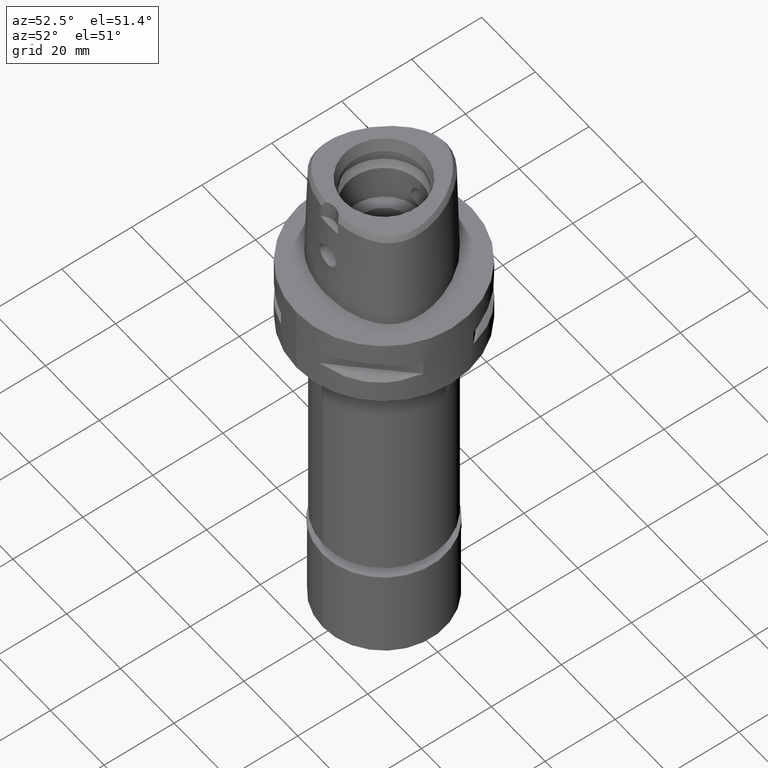
[diagram: clean part render]
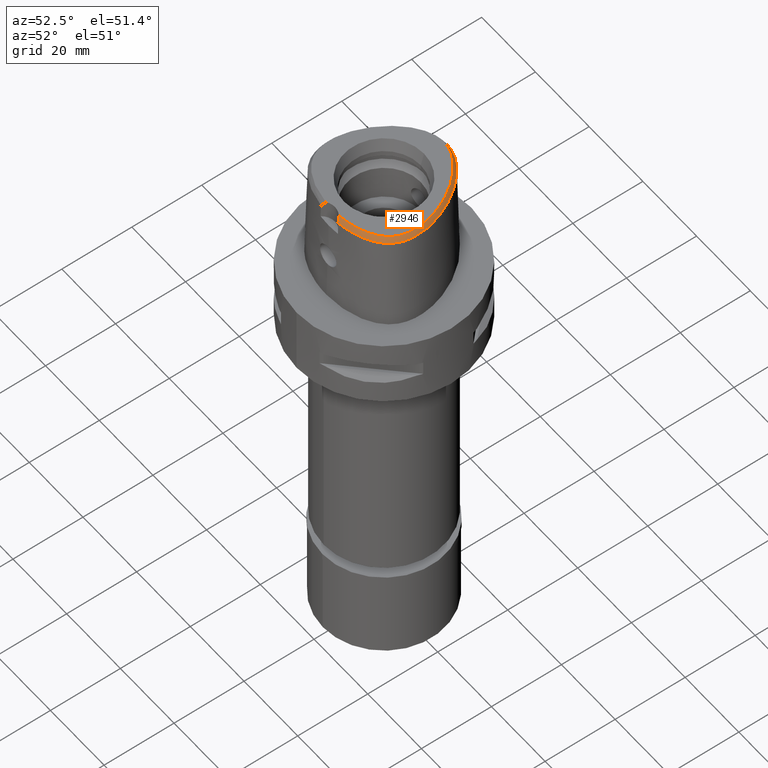
[diagram: same view with one face highlighted and labeled with its STEP entity id]
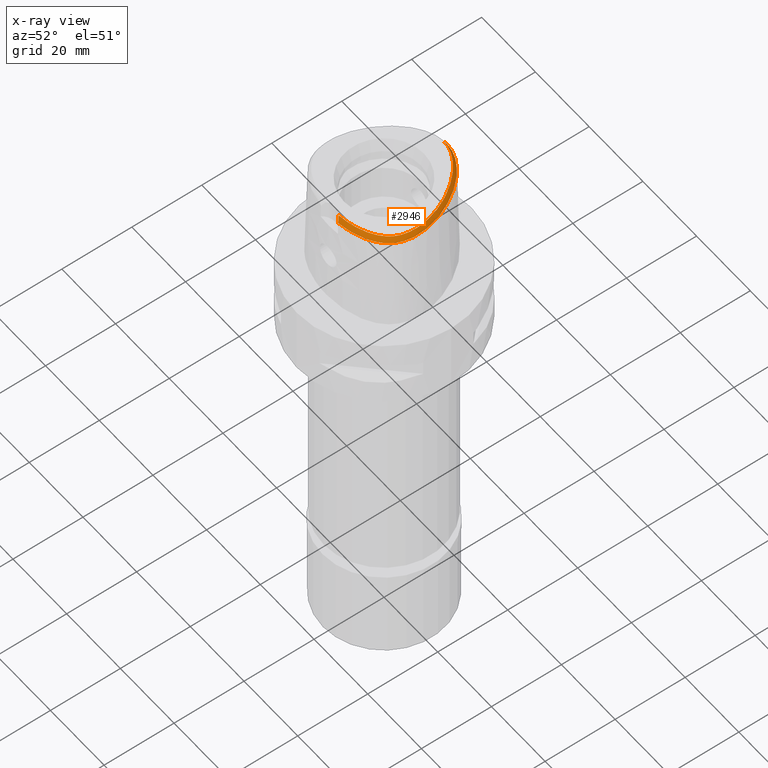
[diagram: x-ray of the same camera — body ghosted, the highlighted face saturated]
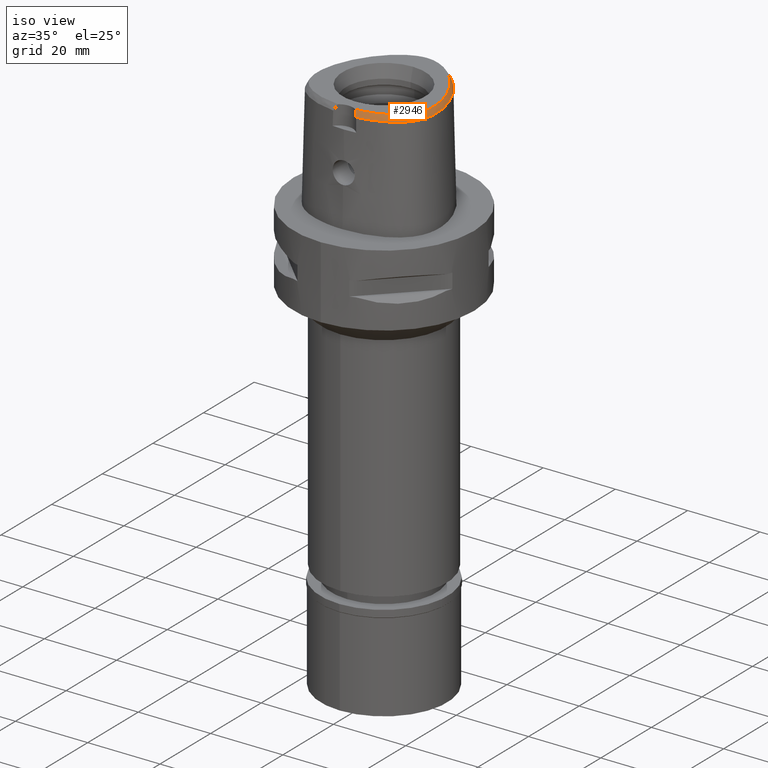
[diagram: same view with one face highlighted and labeled with its STEP entity id]
A machine part, auxiliary view. The second image highlights one B-rep face of the part: STEP entity #2946.
The next image is the same camera in x-ray: the body ghosted, the highlighted face saturated — about 0% of this face is hidden behind the body in this view.
A second angle (iso view) of the same face is appended — the face is thin or edge-on in the first view.
In plain terms, the highlighted face is a freeform B-spline surface patch.
Its self-contained STEP definition (entity closure, byte-faithful):
#6 = CARTESIAN_POINT ( 'NONE',  ( 3.160220630684000387, 16.83716133807999782, 29.56139486168000374 ) ) ;
#9 = CARTESIAN_POINT ( 'NONE',  ( 14.33750027317999987, -10.81116860115000122, 28.35713733753000199 ) ) ;
#21 = CARTESIAN_POINT ( 'NONE',  ( 6.633907724022000352, -13.96934925799000027, 30.16352360234999708 ) ) ;
#29 = CARTESIAN_POINT ( 'NONE',  ( 1.894151058223999984, 17.54271565748999961, 28.95926648253999858 ) ) ;
#45 = CARTESIAN_POINT ( 'NONE',  ( 13.02462620727999898, -11.57639432296000059, 28.95926617666999903 ) ) ;
#53 = CARTESIAN_POINT ( 'NONE',  ( 16.24328738474999767, -5.185950599522000992, 29.56139515919999639 ) ) ;
#56 = CARTESIAN_POINT ( 'NONE',  ( 4.762321264600999804, 16.51859916112000093, 28.95926955945000003 ) ) ;
#59 = CARTESIAN_POINT ( 'NONE',  ( 14.09123853286000028, -10.58025962735000114, 28.95926622756999791 ) ) ;
#71 = CARTESIAN_POINT ( 'NONE',  ( 7.861918263704999355, -13.94736099140000007, 29.56139600654000077 ) ) ;
#112 = CARTESIAN_POINT ( 'NONE',  ( 2.133383074004000068, -15.41360013701999954, 28.95926686195999977 ) ) ;
#125 = CARTESIAN_POINT ( 'NONE',  ( 17.04632358671999981, -3.547512015474999725, 28.35713765087999860 ) ) ;
#151 = CARTESIAN_POINT ( 'NONE',  ( 15.81139830138999969, -0.6287480700163999847, 30.16352389208000062 ) ) ;
#181 = CARTESIAN_POINT ( 'NONE',  ( 10.60500548644139407, -12.49469941439781095, 29.99999999999902300 ) ) ;
#220 = CARTESIAN_POINT ( 'NONE',  ( 13.47512630489999985, 8.344873888123998995, 28.35713741882999983 ) ) ;
#239 = CARTESIAN_POINT ( 'NONE',  ( 12.60735000698999997, 7.823294884878000843, 30.16352399954999797 ) ) ;
#243 = CARTESIAN_POINT ( 'NONE',  ( 2.462701199043999978, -15.72524104751999907, 28.35713832877000229 ) ) ;
#247 = CARTESIAN_POINT ( 'NONE',  ( 15.04259016984715913, -8.247723288182516654, 30.00000000000400746 ) ) ;
#248 = CARTESIAN_POINT ( 'NONE',  ( 7.011539855831999901, 14.71106765531999905, 29.56139496884999929 ) ) ;
#263 = CARTESIAN_POINT ( 'NONE',  ( 7.860329156096000247, 14.03108164310000028, 29.56139528483999968 ) ) ;
#266 = CARTESIAN_POINT ( 'NONE',  ( 14.26907046692650383, -10.79012245165822392, 28.52071728562183495 ) ) ;
#272 = CARTESIAN_POINT ( 'NONE',  ( 15.19902958498000167, -9.757310304429001491, 28.35713728085000085 ) ) ;
#285 = EDGE_CURVE ( 'NONE', #2621, #373, #2567, .T. ) ;
#294 = CARTESIAN_POINT ( 'NONE',  ( 14.93358875778000083, 2.839461067302999631, 30.16352400010999801 ) ) ;
#305 = CARTESIAN_POINT ( 'NONE',  ( 6.184562373902999788, 15.29803179059999962, 29.56139617669000330 ) ) ;
#309 = B_SPLINE_CURVE_WITH_KNOTS ( 'NONE', 3,
 ( #1132, #2253, #1371, #664, #2866, #686, #4377, #3671, #4326, #3282, #3692, #611, #3965, #1056, #2452, #3224, #2945, #2482, #3304, #2506, #2555, #4420, #4019, #4772, #4067, #334, #3997, #2112, #3621, #4589, #2348, #484, #3716, #893, #2401, #247, #3540, #4315, #4728, #940, #3953, #570, #2491, #3910, #181, #1660, #3162, #4659, #1280, #1713, #3212, #2806, #2420, #3982 ),
 .UNSPECIFIED., .F., .F.,
 ( 4, 1, 1, 1, 1, 1, 1, 1, 1, 1, 1, 1, 1, 1, 1, 1, 1, 1, 1, 1, 1, 1, 1, 1, 1, 1, 1, 1, 1, 1, 1, 1, 1, 1, 1, 1, 1, 1, 1, 1, 1, 1, 1, 1, 1, 1, 1, 1, 1, 1, 1, 4 ),
 ( 0.0000000000000000000, 0.01988587058640001182, 0.03977174117009996124, 0.05965761175399997285, 0.07954348233780006439, 0.09942935292160004490, 0.1193152235055000565, 0.1392010940893000370, 0.1590869646731999376, 0.1789728352568999981, 0.1988587058408000097, 0.2187445764247000213, 0.2386304470083999707, 0.2585163175922999823, 0.2784021881761000738, 0.2982880587598999433, 0.3181739293438000660, 0.3380597999276000465, 0.3579456705113999160, 0.3778315410952000075, 0.3977174116791000191, 0.4176032822630000307, 0.4374891528466999802, 0.4573750234305999918, 0.4772608940143999723, 0.4971467645981999528, 0.5170326351820999644, 0.5369185057659000559, 0.5568043763497000365, 0.5766902469335999371, 0.5965761175174000286, 0.6164619881012000091, 0.6363478586849999896, 0.6562337292689000012, 0.6761195998528000128, 0.6960054704364999623, 0.7158913410203999739, 0.7357772116042000654, 0.7556630821880000459, 0.7755489527718999465, 0.7954348233557000381, 0.8153206939395000186, 0.8352065645232999991, 0.8550924351072000107, 0.8749783056909999912, 0.8948641762747999717, 0.9147500468586799993, 0.9346359174424899718, 0.9545217880263200394, 0.9744076586101599879, 0.9942935291939859477, 1.000000000000000000 ),
 .UNSPECIFIED. ) ;
#334 = CARTESIAN_POINT ( 'NONE',  ( 15.90185233182275759, -0.6139199331565649009, 29.99999999999868194 ) ) ;
#335 = CARTESIAN_POINT ( 'NONE',  ( 4.198623546159000242, -14.84041770724000031, 29.56139498296999690 ) ) ;
#373 = VERTEX_POINT ( 'NONE', #2668 ) ;
#374 = CARTESIAN_POINT ( 'NONE',  ( 13.82028004668000065, -11.32806507435000043, 28.35713726540999957 ) ) ;
#394 = CARTESIAN_POINT ( 'NONE',  ( 4.914349362092999662, 16.81997419941999894, 28.35714259711000196 ) ) ;
#408 = CARTESIAN_POINT ( 'NONE',  ( 10.00343136458999993, -13.45367827526999882, 28.95926610928999878 ) ) ;
#430 = CARTESIAN_POINT ( 'NONE',  ( 13.35956165138000173, -10.83453841392000072, 29.56139509834999757 ) ) ;
#437 = CARTESIAN_POINT ( 'NONE',  ( 0.5627680328319000225, 17.04860035900999904, 30.16352402244000075 ) ) ;
#456 = CARTESIAN_POINT ( 'NONE',  ( -0.3069366997010999354, 17.05741411041999811, 30.16352399866000056 ) ) ;
#459 = CARTESIAN_POINT ( 'NONE',  ( 14.37288452396000160, -9.171440254203998776, 30.16352401327999999 ) ) ;
#484 = CARTESIAN_POINT ( 'NONE',  ( 15.87349190487638495, -5.869792298897605676, 30.00000000000116174 ) ) ;
#498 = CARTESIAN_POINT ( 'NONE',  ( 16.69553006481000068, -2.601026832325000093, 28.95926625530999843 ) ) ;
#502 = CARTESIAN_POINT ( 'NONE',  ( -0.4850132322538000529, 17.38585523236000085, 29.56139504411000019 ) ) ;
#504 = EDGE_CURVE ( 'NONE', #4191, #3636, #309, .T. ) ;
#542 = CARTESIAN_POINT ( 'NONE',  ( 16.95646637676999902, -1.558011371480999996, 28.35713684948999713 ) ) ;
#570 = CARTESIAN_POINT ( 'NONE',  ( 12.65514534656730916, -11.12483370673971095, 30.00000000000817479 ) ) ;
#589 = CARTESIAN_POINT ( 'NONE',  ( 15.63332141487000193, 1.723825833584999856, 29.56139608606000024 ) ) ;
#611 = CARTESIAN_POINT ( 'NONE',  ( 6.863227115065437367, 14.51498137220247564, 30.00000000000018829 ) ) ;
#613 = CARTESIAN_POINT ( 'NONE',  ( 15.30845497318999904, 1.632344270090999805, 30.16352364656999896 ) ) ;
#615 = CARTESIAN_POINT ( 'NONE',  ( 3.738627708319180787, -15.49270856215351877, 28.52071728562183495 ) ) ;
#647 = CARTESIAN_POINT ( 'NONE',  ( 16.13895501490999962, -8.083879123173998593, 28.35713778727999923 ) ) ;
#664 = CARTESIAN_POINT ( 'NONE',  ( 1.161482229273570921, 17.07843133414933945, 30.00000000000869349 ) ) ;
#667 = CARTESIAN_POINT ( 'NONE',  ( 12.41013221256999977, 9.387612387726001373, 28.95926708504000047 ) ) ;
#686 = CARTESIAN_POINT ( 'NONE',  ( 2.412811123804682101, 16.81558681049441617, 30.00000000001045919 ) ) ;
#707 = CARTESIAN_POINT ( 'NONE',  ( 8.782223388699000211, -13.24915121961000075, 30.16352400050000071 ) ) ;
#710 = CARTESIAN_POINT ( 'NONE',  ( 16.01658383235691474, -8.155509186611954675, 28.52071728562183495 ) ) ;
#731 = CARTESIAN_POINT ( 'NONE',  ( 12.38915161343999927, -12.06425164630000069, 28.95926678928000086 ) ) ;
#755 = CARTESIAN_POINT ( 'NONE',  ( 10.56119887452999961, -12.41417728393000175, 30.16352400853999782 ) ) ;
#764 = CARTESIAN_POINT ( 'NONE',  ( 0.03975135395809000632, 17.40451366719999982, 29.56139521067999709 ) ) ;
#777 = CARTESIAN_POINT ( 'NONE',  ( 13.12920245373000050, -10.58777508370999954, 30.16352401481999834 ) ) ;
#787 = CARTESIAN_POINT ( 'NONE',  ( 2.479371429671000104, 17.05230756772000333, 29.56139508535000360 ) ) ;
#811 = CARTESIAN_POINT ( 'NONE',  ( 2.662123080188999680, 17.70226114788000160, 28.35713721671000087 ) ) ;
#814 = CARTESIAN_POINT ( 'NONE',  ( 14.79540576309000066, -10.28770569075999930, 28.35713793927000026 ) ) ;
#833 = CARTESIAN_POINT ( 'NONE',  ( 16.66738864687000188, -4.418953499775001070, 28.95926691310999956 ) ) ;
#836 = CARTESIAN_POINT ( 'NONE',  ( 1.242392253823999981, 17.65630229895999648, 28.95926609361000104 ) ) ;
#845 = CARTESIAN_POINT ( 'NONE',  ( 3.238968095606000297, -15.64898600084999991, 28.35713804332999999 ) ) ;
#878 = CARTESIAN_POINT ( 'NONE',  ( -3.151827129214000572E-11, 17.98202997909999823, 28.52071728569000086 ) ) ;
#882 = CARTESIAN_POINT ( 'NONE',  ( 15.92926550300999899, 0.5453614008504999999, 29.56139620812000146 ) ) ;
#893 = CARTESIAN_POINT ( 'NONE',  ( 15.51702143705363213, -7.148634146068517659, 30.00000000000283507 ) ) ;
#908 = CARTESIAN_POINT ( 'NONE',  ( 16.28510340835000036, -1.628456675261000131, 29.56139498730999904 ) ) ;
#934 = CARTESIAN_POINT ( 'NONE',  ( 1.945236707869999915, -15.08898229434000093, 29.56139537937000128 ) ) ;
#940 = CARTESIAN_POINT ( 'NONE',  ( 13.66559393375217546, -10.18115111193898947, 30.00000000000609290 ) ) ;
#954 = CARTESIAN_POINT ( 'NONE',  ( 12.89660877296000052, 7.997154552626999369, 29.56139513930999740 ) ) ;
#962 = CARTESIAN_POINT ( 'NONE',  ( 1.993843166562000224, -15.76189230400000163, 28.35713831803000318 ) ) ;
#988 = CARTESIAN_POINT ( 'NONE',  ( 10.91764517732974760, 11.98972036053649326, 28.52071728562183495 ) ) ;
#1009 = CARTESIAN_POINT ( 'NONE',  ( 13.30281519811999935, 6.593902500402999856, 30.16352396362000121 ) ) ;
#1018 = CARTESIAN_POINT ( 'NONE',  ( 5.997107232590000336, 15.01734143392999954, 30.16352361277999705 ) ) ;
#1038 = ORIENTED_EDGE ( 'NONE', *, *, #1288, .T. ) ;
#1056 = CARTESIAN_POINT ( 'NONE',  ( 8.557117433366284942, 13.07415149352838135, 30.00000000000518696 ) ) ;
#1060 = CARTESIAN_POINT ( 'NONE',  ( 11.04554145730999970, 10.13634547717000167, 30.16352392579999986 ) ) ;
#1083 = CARTESIAN_POINT ( 'NONE',  ( 9.158052402024001282, -14.18937572701999805, 28.35713740919999637 ) ) ;
#1104 = CARTESIAN_POINT ( 'NONE',  ( 4.305296553290999917, -15.50692178941999977, 28.35713683327000112 ) ) ;
#1132 = CARTESIAN_POINT ( 'NONE',  ( -6.301949014349000839E-11, 17.15328888647999861, 30.00000000000000000 ) ) ;
#1145 = CARTESIAN_POINT ( 'NONE',  ( 1.195580797747999968, 17.32196818601000388, 29.56139506115000160 ) ) ;
#1159 = CARTESIAN_POINT ( 'NONE',  ( 13.23839374942000013, -11.83765008291000065, 28.35713725719000067 ) ) ;
#1162 = ORIENTED_EDGE ( 'NONE', *, *, #504, .T. ) ;
#1169 = CARTESIAN_POINT ( 'NONE',  ( 16.91174334249000211, -5.280618200786999950, 28.35713749333999800 ) ) ;
#1172 = CARTESIAN_POINT ( 'NONE',  ( 4.610293167108999945, 16.21722412281999937, 29.56139652178000077 ) ) ;
#1194 = CARTESIAN_POINT ( 'NONE',  ( 1.289203709899999994, 17.99063641192000063, 28.35713712607999781 ) ) ;
#1197 = CARTESIAN_POINT ( 'NONE',  ( 14.27274441644999925, -9.860267981787000480, 29.56139527825000002 ) ) ;
#1217 = CARTESIAN_POINT ( 'NONE',  ( 1.963592199285000062, 17.87308477170000032, 28.35713774003000154 ) ) ;
#1228 = CARTESIAN_POINT ( 'NONE',  ( 1.969539937215999847, -15.42543729916999951, 28.95926684870000045 ) ) ;
#1238 = CARTESIAN_POINT ( 'NONE',  ( 16.02115857717999958, -2.631652804504999832, 30.16352400328000272 ) ) ;
#1255 = CARTESIAN_POINT ( 'NONE',  ( 16.35834432099999702, -2.616339818414999741, 29.56139512928999835 ) ) ;
#1280 = CARTESIAN_POINT ( 'NONE',  ( 6.658132732488579286, -14.05774790738911051, 30.00000000000316902 ) ) ;
#1288 = EDGE_CURVE ( 'NONE', #2621, #4191, #1582, .T. ) ;
#1303 = FACE_OUTER_BOUND ( 'NONE', #1570, .T. ) ;
#1317 = CARTESIAN_POINT ( 'NONE',  ( 9.600000820887998998, 12.37412457679000077, 29.56139562346999838 ) ) ;
#1345 = CARTESIAN_POINT ( 'NONE',  ( 15.07117004567137108, -9.793013887526525352, 28.52071728562183495 ) ) ;
#1362 = CARTESIAN_POINT ( 'NONE',  ( 2.935843368208244542, -15.25651436815395812, 29.10537844852913381 ) ) ;
#1371 = CARTESIAN_POINT ( 'NONE',  ( 0.5691917915716084853, 17.14006060248818031, 30.00000000001038813 ) ) ;
#1373 = CARTESIAN_POINT ( 'NONE',  ( 8.959520074718998472, 13.49649252205000138, 28.95926793759999640 ) ) ;
#1400 = CARTESIAN_POINT ( 'NONE',  ( 12.13042179434999923, 9.198773224976999785, 29.56139547896999886 ) ) ;
#1448 = CARTESIAN_POINT ( 'NONE',  ( 9.716739280499998799, -12.84252677189999936, 30.16352402621999929 ) ) ;
#1456 = CARTESIAN_POINT ( 'NONE',  ( 16.11421254371999723, -5.919976493601000200, 29.56139508316999809 ) ) ;
#1460 = CARTESIAN_POINT ( 'NONE',  ( 7.418755505081999324, 15.24945297999999916, 28.35713678038000296 ) ) ;
#1474 = CARTESIAN_POINT ( 'NONE',  ( 11.99588061276000062, -11.51551264574999855, 30.16352391938000110 ) ) ;
#1481 = CARTESIAN_POINT ( 'NONE',  ( 0.6100752237413999968, 17.72215105879999797, 28.95926613339999989 ) ) ;
#1501 = CARTESIAN_POINT ( 'NONE',  ( 7.754697575589999836, -13.62733460049999934, 30.16352367621999875 ) ) ;
#1515 = CARTESIAN_POINT ( 'NONE',  ( 4.458265069617000087, 15.91584908451999780, 30.16352348411999884 ) ) ;
#1531 = CARTESIAN_POINT ( 'NONE',  ( 12.59709112301000111, -11.05388280304999959, 30.16352401564000019 ) ) ;
#1543 = CARTESIAN_POINT ( 'NONE',  ( 2.570747254929999670, 17.37728435780000069, 28.95926615102999691 ) ) ;
#1557 = CARTESIAN_POINT ( 'NONE',  ( 12.81085866515000049, -11.31513856301000054, 29.56139509615000094 ) ) ;
#1570 = EDGE_LOOP ( 'NONE', ( #1904, #1038, #1162, #3210 ) ) ;
#1574 = CARTESIAN_POINT ( 'NONE',  ( 2.159726698038999970, -15.74990775770999996, 28.35713833895999869 ) ) ;
#1582 = LINE ( 'NONE', #878, #2314 ) ;
#1589 = CARTESIAN_POINT ( 'NONE',  ( 4.002400425672999695, 16.87150155799000117, 28.95926688336999888 ) ) ;
#1595 = CARTESIAN_POINT ( 'NONE',  ( 7.969138951820998962, -14.26738738230000081, 28.95926833686000279 ) ) ;
#1599 = CARTESIAN_POINT ( 'NONE',  ( 2.402531830162999871, -15.05323467420000050, 29.56139538224000063 ) ) ;
#1636 = CARTESIAN_POINT ( 'NONE',  ( 16.14446856876000069, -0.5741478329139000358, 29.56139542752999816 ) ) ;
#1660 = CARTESIAN_POINT ( 'NONE',  ( 9.755668685252752326, -12.92551394022653888, 30.00000000000211742 ) ) ;
#1674 = CARTESIAN_POINT ( 'NONE',  ( 17.03271580862000079, -2.585713846235000002, 28.35713738132000117 ) ) ;
#1713 = CARTESIAN_POINT ( 'NONE',  ( 5.446614459517069129, -14.35518554872932917, 30.00000000000590816 ) ) ;
#1725 = CARTESIAN_POINT ( 'NONE',  ( 11.85071137612999870, 9.009934062226999885, 30.16352387290000081 ) ) ;
#1748 = CARTESIAN_POINT ( 'NONE',  ( 8.726705245219001483, 13.25214210174999963, 29.56139583828000283 ) ) ;
#1754 = CARTESIAN_POINT ( 'NONE',  ( -3.151827129214000572E-11, 17.98202997909999823, 28.52071728569000086 ) ) ;
#1762 = CARTESIAN_POINT ( 'NONE',  ( -6.301949014349000839E-11, 17.15328888647999861, 30.00000000000000000 ) ) ;
#1772 = CARTESIAN_POINT ( 'NONE',  ( 14.23374988245000061, 5.481159166282000506, 29.56139540587999903 ) ) ;
#1780 = CARTESIAN_POINT ( 'NONE',  ( 15.20905403176000092, -7.682597317785999635, 30.16352396286999848 ) ) ;
#1787 = CARTESIAN_POINT ( 'NONE',  ( 6.372017515217000216, 15.57872214726999971, 28.95926874058999800 ) ) ;
#1792 = CARTESIAN_POINT ( 'NONE',  ( 3.168920890822999770, -15.55911073834000113, 28.52071374672999582 ) ) ;
#1804 = CARTESIAN_POINT ( 'NONE',  ( 15.43055712849000116, -7.118146631691999460, 30.16352397393999851 ) ) ;
#1828 = CARTESIAN_POINT ( 'NONE',  ( 15.62296714671999887, -6.509432245211999479, 30.16352401006000150 ) ) ;
#1850 = CARTESIAN_POINT ( 'NONE',  ( 11.49813341445999981, -12.25642228539999934, 29.56139530529999959 ) ) ;
#1853 = CARTESIAN_POINT ( 'NONE',  ( 15.84228676733109076, 3.460033425849080135, 28.52071728562183495 ) ) ;
#1879 = CARTESIAN_POINT ( 'NONE',  ( 15.78374460573999905, -5.851082245802000870, 30.16352402046999970 ) ) ;
#1882 = CARTESIAN_POINT ( 'NONE',  ( 1.755268776100999961, 16.88197742905999732, 30.16352396757000065 ) ) ;
#1897 = CARTESIAN_POINT ( 'NONE',  ( 10.72250379231000039, -12.71067626131999972, 29.56139511515999985 ) ) ;
#1904 = ORIENTED_EDGE ( 'NONE', *, *, #285, .F. ) ;
#1923 = CARTESIAN_POINT ( 'NONE',  ( 13.58992084903000119, -11.08130174413000013, 28.95926618187999679 ) ) ;
#1931 = CARTESIAN_POINT ( 'NONE',  ( 3.047710618296000096, 16.51889246068000006, 30.16352410305000120 ) ) ;
#1934 = CARTESIAN_POINT ( 'NONE',  ( 14.01141374313000121, -9.646549127298001736, 30.16352394773999990 ) ) ;
#1940 = CARTESIAN_POINT ( 'NONE',  ( 2.080695825932000531, -14.74098489564999959, 30.16352390795999838 ) ) ;
#1951 = CARTESIAN_POINT ( 'NONE',  ( -0.3196057776690000574, 17.39456437730000005, 29.56139514165999671 ) ) ;
#1976 = CARTESIAN_POINT ( 'NONE',  ( -0.3322748556369000128, 17.73171464417999843, 28.95926628464999908 ) ) ;
#2005 = CARTESIAN_POINT ( 'NONE',  ( -0.5039140958810000015, 17.72263734254000056, 28.95926605319000302 ) ) ;
#2089 = CARTESIAN_POINT ( 'NONE',  ( 15.89178716332000008, 3.166551920686999644, 28.35713741318999936 ) ) ;
#2112 = CARTESIAN_POINT ( 'NONE',  ( 16.11273027396860869, -2.627494158581008321, 30.00000000000489919 ) ) ;
#2113 = CARTESIAN_POINT ( 'NONE',  ( 10.46690835357999916, 11.40138550634999959, 29.56139499641999890 ) ) ;
#2151 = CARTESIAN_POINT ( 'NONE',  ( 7.215147680457000057, 14.98026031765999910, 28.95926587462000157 ) ) ;
#2163 = CARTESIAN_POINT ( 'NONE',  ( 12.68984263077999941, 9.576451550475999497, 28.35713869110000118 ) ) ;
#2165 = CARTESIAN_POINT ( 'NONE',  ( 16.99625257116710486, -3.273868232426887737, 28.52071728562183495 ) ) ;
#2171 = CARTESIAN_POINT ( 'NONE',  ( 15.55110421638999973, -9.221906134369000085, 28.35713754071000281 ) ) ;
#2183 = CARTESIAN_POINT ( 'NONE',  ( 0.6295828025425412866, 17.98202997637433853, 28.52071728562183495 ) ) ;
#2188 = CARTESIAN_POINT ( 'NONE',  ( 16.06731571698999872, -7.342669176818000132, 28.95926644200999789 ) ) ;
#2206 = CARTESIAN_POINT ( 'NONE',  ( 11.04511362788000106, -13.30367421610000100, 28.35713732841000123 ) ) ;
#2212 = CARTESIAN_POINT ( 'NONE',  ( 16.44468048170000429, -5.988870741400999620, 28.95926614586999648 ) ) ;
#2253 = CARTESIAN_POINT ( 'NONE',  ( 0.1912597614439535132, 17.15328888648386751, 30.00000000000342126 ) ) ;
#2255 = CARTESIAN_POINT ( 'NONE',  ( 12.19251611309999817, -11.78988214602999918, 29.56139535432999921 ) ) ;
#2279 = CARTESIAN_POINT ( 'NONE',  ( 11.67725352791999960, -12.54252288682999961, 28.95926667294999746 ) ) ;
#2288 = CARTESIAN_POINT ( 'NONE',  ( 2.387995604413000184, 16.72733077763999887, 30.16352401966999963 ) ) ;
#2314 = VECTOR ( 'NONE', #4576, 1000.000000000000000 ) ;
#2318 = CARTESIAN_POINT ( 'NONE',  ( 0.04271737047192000758, 18.07962610484999644, 28.35713768617999975 ) ) ;
#2348 = CARTESIAN_POINT ( 'NONE',  ( 15.99982784345596976, -5.151471542954735305, 29.99999999999806732 ) ) ;
#2366 = CARTESIAN_POINT ( 'NONE',  ( -0.4661123686266000488, 17.04907312217000026, 30.16352403503000090 ) ) ;
#2401 = CARTESIAN_POINT ( 'NONE',  ( 15.29323375805077134, -7.718923543002969900, 30.00000000000274980 ) ) ;
#2420 = CARTESIAN_POINT ( 'NONE',  ( 2.538962679605470729, -14.79292722369608271, 30.00000000000931877 ) ) ;
#2438 = CARTESIAN_POINT ( 'NONE',  ( 2.107039449968000078, -15.07729251633000089, 29.56139538496000085 ) ) ;
#2452 = CARTESIAN_POINT ( 'NONE',  ( 9.420872132873588711, 12.20574557692858164, 30.00000000000777689 ) ) ;
#2456 = CARTESIAN_POINT ( 'NONE',  ( 16.28305429823000239, 1.906788960574000047, 28.35714096504000281 ) ) ;
#2482 = CARTESIAN_POINT ( 'NONE',  ( 11.92667412982101460, 9.061218325782419925, 29.99999999999763389 ) ) ;
#2491 = CARTESIAN_POINT ( 'NONE',  ( 12.04928217775816357, -11.59002493207335505, 30.00000000000548539 ) ) ;
#2506 = CARTESIAN_POINT ( 'NONE',  ( 13.38374903490284673, 6.636915464739853832, 30.00000000000296652 ) ) ;
#2507 = CARTESIAN_POINT ( 'NONE',  ( 11.31486877210999964, 10.33972372285999874, 29.56139533710000222 ) ) ;
#2555 = CARTESIAN_POINT ( 'NONE',  ( 14.01089202938475253, 5.377385268370936444, 29.99999999999765876 ) ) ;
#2565 = CARTESIAN_POINT ( 'NONE',  ( 15.26280677903000083, -9.046220165911000421, 28.95926635628000412 ) ) ;
#2567 = B_SPLINE_CURVE_WITH_KNOTS ( 'NONE', 3,
 ( #3255, #2183, #3308, #2585, #4821, #988, #4024, #1853, #4048, #2165, #3330, #2900, #710, #4776, #1345, #266, #3626, #2873, #4357, #4000, #615, #4453 ),
 .UNSPECIFIED., .F., .F.,
 ( 4, 1, 1, 1, 1, 1, 1, 1, 1, 1, 1, 1, 1, 1, 1, 1, 1, 1, 1, 4 ),
 ( 0.0000000000000000000, 0.04404152929333968181, 0.08808305858551654377, 0.1761661171698704897, 0.2642491757542244635, 0.3523322343385784094, 0.4404152929230379931, 0.5284983515073918836, 0.5725398807995688566, 0.6165814100917457186, 0.6606229393839229136, 0.6826437040300112891, 0.7046644686762054688, 0.7266852333222939553, 0.7487059979682767485, 0.7927475272605594148, 0.8367890565527363878, 0.8808305858449132497, 0.9689136444292882899, 1.000000000000000000 ),
 .UNSPECIFIED. ) ;
#2582 = CARTESIAN_POINT ( 'NONE',  ( 6.723109167102000683, -14.29485119139999938, 29.56139620465999940 ) ) ;
#2585 = CARTESIAN_POINT ( 'NONE',  ( 4.422474504766027437, 17.08283549833477721, 28.52071728562183495 ) ) ;
#2591 = CARTESIAN_POINT ( 'NONE',  ( 8.297795180288000338, 14.54516729059999847, 28.35713796395999964 ) ) ;
#2606 = CARTESIAN_POINT ( 'NONE',  ( 8.907499726474000568, -13.56255938874000044, 29.56139513672999897 ) ) ;
#2616 = CARTESIAN_POINT ( 'NONE',  ( 3.869623585338999749, 16.56115168794999803, 29.56139539398000338 ) ) ;
#2621 = VERTEX_POINT ( 'NONE', #1754 ) ;
#2640 = CARTESIAN_POINT ( 'NONE',  ( 4.145287042592999960, -14.50716566614999969, 30.16352405783000279 ) ) ;
#2668 = CARTESIAN_POINT ( 'NONE',  ( 3.168920890822999770, -15.55911073834000113, 28.52071374672999582 ) ) ;
#2697 = CARTESIAN_POINT ( 'NONE',  ( 16.27337282606000102, -6.690592375804999214, 28.95926621214000107 ) ) ;
#2702 = CARTESIAN_POINT ( 'NONE',  ( 0.04123436221500999949, 17.74206988602000123, 28.95926644843000020 ) ) ;
#2704 = CARTESIAN_POINT ( 'NONE',  ( 14.53407508977000084, -10.07398683626999869, 28.95926660875999659 ) ) ;
#2730 = CARTESIAN_POINT ( 'NONE',  ( 15.99429710997999798, -4.366847210511000554, 30.16352389992000127 ) ) ;
#2733 = CARTESIAN_POINT ( 'NONE',  ( 4.135177266007000085, 17.18185142804000165, 28.35713837276000149 ) ) ;
#2745 = CARTESIAN_POINT ( 'NONE',  ( 3.159454793562999964, -14.97887958537999964, 29.56139530603000054 ) ) ;
#2775 = CARTESIAN_POINT ( 'NONE',  ( 17.00393441530999894, -4.445006644406999996, 28.35713841971000093 ) ) ;
#2776 = B_SPLINE_SURFACE_WITH_KNOTS ( 'NONE', 3, 3, ( 
 ( #3207, #934, #1228, #962 ),
 ( #1940, #2438, #112, #1574 ),
 ( #3602, #1599, #4592, #243 ),
 ( #3079, #2745, #4232, #845 ),
 ( #2640, #335, #3328, #1104 ),
 ( #4186, #3695, #4530, #4135 ),
 ( #21, #2582, #3063, #4819 ),
 ( #1501, #71, #1595, #4500 ),
 ( #707, #2606, #4159, #1083 ),
 ( #1448, #4086, #408, #2972 ),
 ( #755, #1897, #4451, #2206 ),
 ( #3718, #1850, #2279, #3352 ),
 ( #1474, #2255, #731, #3401 ),
 ( #1531, #1557, #45, #1159 ),
 ( #777, #430, #1923, #374 ),
 ( #3365, #3787, #59, #9 ),
 ( #1934, #1197, #2704, #814 ),
 ( #459, #3977, #4407, #272 ),
 ( #4725, #2954, #2565, #2171 ),
 ( #2906, #3678, #4384, #4074 ),
 ( #1780, #4433, #4030, #647 ),
 ( #1804, #3655, #2188, #3702 ),
 ( #1828, #2849, #2697, #3455 ),
 ( #1879, #1456, #2212, #3380 ),
 ( #3780, #53, #4539, #1169 ),
 ( #2730, #4219, #833, #2775 ),
 ( #3483, #4285, #3921, #125 ),
 ( #1238, #1255, #498, #1674 ),
 ( #3154, #908, #3506, #542 ),
 ( #151, #1636, #3899, #4628 ),
 ( #4263, #882, #3998, #3968 ),
 ( #613, #589, #3650, #2456 ),
 ( #294, #2925, #3226, #2089 ),
 ( #3305, #2898, #4744, #3283 ),
 ( #3574, #1772, #3600, #2870 ),
 ( #1009, #4398, #4792, #4046 ),
 ( #239, #954, #4774, #220 ),
 ( #1725, #1400, #667, #2163 ),
 ( #1060, #2507, #3673, #4021 ),
 ( #4697, #2113, #2947, #3203 ),
 ( #4426, #1317, #4353, #3253 ),
 ( #4330, #1748, #1373, #3623 ),
 ( #2839, #263, #4759, #2591 ),
 ( #4827, #248, #2151, #1460 ),
 ( #1018, #305, #1787, #4169 ),
 ( #3361, #4481, #3383, #3409 ),
 ( #1515, #1172, #56, #394 ),
 ( #4194, #2616, #1589, #2733 ),
 ( #1931, #6, #3459, #4559 ),
 ( #2288, #787, #1543, #811 ),
 ( #1882, #3833, #29, #1217 ),
 ( #3025, #1145, #836, #1194 ),
 ( #437, #4512, #1481, #4118 ),
 ( #4147, #764, #2702, #2318 ),
 ( #456, #1951, #1976, #3486 ),
 ( #2366, #502, #2005, #3514 ) ),
 .UNSPECIFIED., .F., .F., .F.,
 ( 4, 1, 1, 1, 1, 1, 1, 1, 1, 1, 1, 1, 1, 1, 1, 1, 1, 1, 1, 1, 1, 1, 1, 1, 1, 1, 1, 1, 1, 1, 1, 1, 1, 1, 1, 1, 1, 1, 1, 1, 1, 1, 1, 1, 1, 1, 1, 1, 1, 1, 1, 1, 1, 4 ),
 ( 4, 4 ),
 ( -0.006850724150829000207, 0.0000000000000000000, 0.005706470806014000280, 0.02559234138984000165, 0.04547821197368000223, 0.06536408255751000040, 0.08524995314132000068, 0.1051358237252000005, 0.1250216943090000088, 0.1449075648927999893, 0.1647934354767000009, 0.1846793060604999814, 0.2045651766443000175, 0.2244510472280999980, 0.2443369178119999818, 0.2642227883957999901, 0.2841086589796000261, 0.3039945295635000377, 0.3238804001471999872, 0.3437662707310999988, 0.3636521413150000104, 0.3835380118987999909, 0.4034238824826000269, 0.4233097530664000074, 0.4431956236502999635, 0.4630814942340999996, 0.4829673648179000356, 0.5028532354018000472, 0.5227391059856000277, 0.5426249765694000082, 0.5625108471533000198, 0.5823967177369999693, 0.6022825883208999809, 0.6221684589047999925, 0.6420543294886000840, 0.6619402000723999535, 0.6818260706561999340, 0.7017119412401000567, 0.7215978118238999262, 0.7414836824077000177, 0.7613695529916000293, 0.7812554235752999787, 0.8011412941591999903, 0.8210271647431000019, 0.8409130353268000624, 0.8607989059106999630, 0.8806847764944999435, 0.9005706470783999551, 0.9204565176621999356, 0.9403423882460000272, 0.9602282588299000388, 0.9801141294135999882, 1.000000000000000000, 1.016057694064999906 ),
 ( -0.08705973462249999573, 1.087090484014999969 ),
 .UNSPECIFIED. ) ;
#2806 = CARTESIAN_POINT ( 'NONE',  ( 3.130495111450381174, -14.73481892791719616, 30.00000000000748557 ) ) ;
#2839 = CARTESIAN_POINT ( 'NONE',  ( 7.641596144000000201, 13.77403881935000030, 30.16352394528999881 ) ) ;
#2849 = CARTESIAN_POINT ( 'NONE',  ( 15.94816998638999905, -6.600012310508000191, 29.56139511109999773 ) ) ;
#2866 = CARTESIAN_POINT ( 'NONE',  ( 1.774127352510408873, 16.97169788999106288, 30.00000000000130029 ) ) ;
#2870 = CARTESIAN_POINT ( 'NONE',  ( 14.84564070758999854, 5.766086509641999314, 28.35713841733999985 ) ) ;
#2873 = CARTESIAN_POINT ( 'NONE',  ( 11.33338046474752048, -13.08225241901844171, 28.52071728562183495 ) ) ;
#2898 = CARTESIAN_POINT ( 'NONE',  ( 14.78633608119999998, 4.205946451011000953, 29.56139508871000032 ) ) ;
#2900 = CARTESIAN_POINT ( 'NONE',  ( 16.47905536661581394, -6.962316254603443610, 28.52071728562183495 ) ) ;
#2906 = CARTESIAN_POINT ( 'NONE',  ( 14.96111905588000113, -8.205665308023998961, 30.16352403686000017 ) ) ;
#2920 = CARTESIAN_POINT ( 'NONE',  ( 2.406543924163999648, -14.80491841401999942, 30.00000000000000000 ) ) ;
#2925 = CARTESIAN_POINT ( 'NONE',  ( 15.25298822628999851, 2.948491351763999901, 29.56139513779999817 ) ) ;
#2945 = CARTESIAN_POINT ( 'NONE',  ( 11.11868440495759280, 10.19157821280366960, 30.00000000000270717 ) ) ;
#2946 = ADVANCED_FACE ( 'NONE', ( #1303 ), #2776, .F. ) ;
#2947 = CARTESIAN_POINT ( 'NONE',  ( 10.72498416585999870, 11.61886980651000023, 28.95926594003999810 ) ) ;
#2954 = CARTESIAN_POINT ( 'NONE',  ( 14.97450934167000014, -8.870534197453999070, 29.56139517185000187 ) ) ;
#2972 = CARTESIAN_POINT ( 'NONE',  ( 10.14677740663999828, -13.75925402694999988, 28.35713715082000164 ) ) ;
#3025 = CARTESIAN_POINT ( 'NONE',  ( 1.148769341671999955, 16.98763407306000062, 30.16352402868999860 ) ) ;
#3063 = CARTESIAN_POINT ( 'NONE',  ( 6.812310610182001014, -14.62035312480000115, 28.95926880697999906 ) ) ;
#3079 = CARTESIAN_POINT ( 'NONE',  ( 3.119698142540999974, -14.64382637763999995, 30.16352393738999993 ) ) ;
#3154 = CARTESIAN_POINT ( 'NONE',  ( 15.94942192414000282, -1.663679327149999887, 30.16352405622000177 ) ) ;
#3162 = CARTESIAN_POINT ( 'NONE',  ( 8.816245487876695819, -13.33426548781619125, 30.00000000000040501 ) ) ;
#3203 = CARTESIAN_POINT ( 'NONE',  ( 10.98305997815000090, 11.83635410667999999, 28.35713688365999730 ) ) ;
#3207 = CARTESIAN_POINT ( 'NONE',  ( 1.920933478524999849, -14.75252728951000059, 30.16352391003999855 ) ) ;
#3210 = ORIENTED_EDGE ( 'NONE', *, *, #4062, .F. ) ;
#3212 = CARTESIAN_POINT ( 'NONE',  ( 4.159771979224633931, -14.59766906203867087, 30.00000000000334666 ) ) ;
#3224 = CARTESIAN_POINT ( 'NONE',  ( 10.27891984617941468, 11.24296481357276889, 29.99999999999936406 ) ) ;
#3226 = CARTESIAN_POINT ( 'NONE',  ( 15.57238769480999885, 3.057521636226000261, 28.95926627549999921 ) ) ;
#3253 = CARTESIAN_POINT ( 'NONE',  ( 10.09182643622000164, 12.83643525485999959, 28.35713923235000067 ) ) ;
#3255 = CARTESIAN_POINT ( 'NONE',  ( -3.151827129214000572E-11, 17.98202997909999823, 28.52071728569000086 ) ) ;
#3282 = CARTESIAN_POINT ( 'NONE',  ( 5.258649622038841898, 15.58603480843212097, 29.99999999999943512 ) ) ;
#3283 = CARTESIAN_POINT ( 'NONE',  ( 15.41248937323000057, 4.458008782980999563, 28.35713722929000014 ) ) ;
#3304 = CARTESIAN_POINT ( 'NONE',  ( 12.68590586676875809, 7.870511070825111588, 30.00000000000883915 ) ) ;
#3305 = CARTESIAN_POINT ( 'NONE',  ( 14.47325943518999836, 4.079915285024999783, 30.16352401841000130 ) ) ;
#3308 = CARTESIAN_POINT ( 'NONE',  ( 1.893775678555069009, 17.84807068955529274, 28.52071728562183495 ) ) ;
#3328 = CARTESIAN_POINT ( 'NONE',  ( 4.251960049725000523, -15.17366974832999915, 28.95926590811999901 ) ) ;
#3330 = CARTESIAN_POINT ( 'NONE',  ( 16.85489147434045520, -5.354527548487413746, 28.52071728562183495 ) ) ;
#3352 = CARTESIAN_POINT ( 'NONE',  ( 11.85637364139000027, -12.82862348826000165, 28.35713804059000154 ) ) ;
#3361 = CARTESIAN_POINT ( 'NONE',  ( 5.212409977349000023, 15.50688384671999920, 30.16352335632000248 ) ) ;
#3365 = CARTESIAN_POINT ( 'NONE',  ( 13.59871505221999932, -10.11844167976000008, 30.16352400763999952 ) ) ;
#3380 = CARTESIAN_POINT ( 'NONE',  ( 16.77514841968000070, -6.057764989199999839, 28.35713720856999842 ) ) ;
#3383 = CARTESIAN_POINT ( 'NONE',  ( 5.552937662986000333, 16.08978395308999865, 28.95927037278000071 ) ) ;
#3401 = CARTESIAN_POINT ( 'NONE',  ( 12.58578711378000037, -12.33862114658000131, 28.35713822422999897 ) ) ;
#3409 = CARTESIAN_POINT ( 'NONE',  ( 5.723201505805000089, 16.38123400626999882, 28.35714388099999894 ) ) ;
#3455 = CARTESIAN_POINT ( 'NONE',  ( 16.59857566572999943, -6.781172441101000814, 28.35713731319000175 ) ) ;
#3459 = CARTESIAN_POINT ( 'NONE',  ( 3.272730643071000145, 17.15543021549000002, 28.95926562030999918 ) ) ;
#3483 = CARTESIAN_POINT ( 'NONE',  ( 16.03381188825999715, -3.532063325595999448, 30.16352397644999783 ) ) ;
#3486 = CARTESIAN_POINT ( 'NONE',  ( -0.3449439336048000238, 18.06886491107000126, 28.35713742764999878 ) ) ;
#3506 = CARTESIAN_POINT ( 'NONE',  ( 16.62078489255999969, -1.593234023371000063, 28.95926591839999986 ) ) ;
#3514 = CARTESIAN_POINT ( 'NONE',  ( -0.5228149595082000056, 18.05941945272000027, 28.35713706227000230 ) ) ;
#3540 = CARTESIAN_POINT ( 'NONE',  ( 14.76450668990753101, -8.742560395149356012, 30.00000000000263611 ) ) ;
#3574 = CARTESIAN_POINT ( 'NONE',  ( 13.92780446987999987, 5.338695494601999769, 30.16352390015000040 ) ) ;
#3600 = CARTESIAN_POINT ( 'NONE',  ( 14.53969529501999958, 5.623622837962000354, 28.95926691161000122 ) ) ;
#3602 = CARTESIAN_POINT ( 'NONE',  ( 2.372447145723000084, -14.71723148754000121, 30.16352390898000024 ) ) ;
#3621 = CARTESIAN_POINT ( 'NONE',  ( 16.12546998862610437, -3.533461825553677382, 30.00000000000640910 ) ) ;
#3623 = CARTESIAN_POINT ( 'NONE',  ( 9.192334904219000791, 13.74084294235999870, 28.35714003691999707 ) ) ;
#3626 = CARTESIAN_POINT ( 'NONE',  ( 13.06460231238267689, -11.91950040983074111, 28.52071728562183495 ) ) ;
#3636 = VERTEX_POINT ( 'NONE', #2920 ) ;
#3650 = CARTESIAN_POINT ( 'NONE',  ( 15.95818785654999949, 1.815307397080000218, 28.95926852554999797 ) ) ;
#3655 = CARTESIAN_POINT ( 'NONE',  ( 15.74893642274000172, -7.230407904255000240, 29.56139520797999864 ) ) ;
#3671 = CARTESIAN_POINT ( 'NONE',  ( 3.772905803807131697, 16.33508552419385040, 30.00000000000762412 ) ) ;
#3673 = CARTESIAN_POINT ( 'NONE',  ( 11.58419608689999869, 10.54310196856000026, 28.95926674839999748 ) ) ;
#3678 = CARTESIAN_POINT ( 'NONE',  ( 15.26111238488999966, -8.360531405525998494, 29.56139503921999889 ) ) ;
#3692 = CARTESIAN_POINT ( 'NONE',  ( 6.048015628560013290, 15.09357031579595265, 30.00000000000416378 ) ) ;
#3695 = CARTESIAN_POINT ( 'NONE',  ( 5.498515683981000102, -14.59548586931999914, 29.56139544109999662 ) ) ;
#3702 = CARTESIAN_POINT ( 'NONE',  ( 16.38569501125000016, -7.454930449381000912, 28.35713767604999802 ) ) ;
#3716 = CARTESIAN_POINT ( 'NONE',  ( 15.71128456931254469, -6.534031654962950242, 30.00000000000341061 ) ) ;
#3718 = CARTESIAN_POINT ( 'NONE',  ( 11.31901330100000003, -11.97032168396999907, 30.16352393765999906 ) ) ;
#3780 = CARTESIAN_POINT ( 'NONE',  ( 15.90905940588000256, -5.138616798888999249, 30.16352399211999824 ) ) ;
#3787 = CARTESIAN_POINT ( 'NONE',  ( 13.84497679253999891, -10.34935065355000106, 29.56139511760000005 ) ) ;
#3833 = CARTESIAN_POINT ( 'NONE',  ( 1.824709917162999906, 17.21234654326999802, 29.56139522506000006 ) ) ;
#3899 = CARTESIAN_POINT ( 'NONE',  ( 16.47753883612999815, -0.5195475958114998960, 28.95926696296999836 ) ) ;
#3910 = CARTESIAN_POINT ( 'NONE',  ( 11.36765809995478804, -12.04801986073289299, 30.00000000000590816 ) ) ;
#3921 = CARTESIAN_POINT ( 'NONE',  ( 16.70881968723000099, -3.542362452181999632, 28.95926642606999835 ) ) ;
#3953 = CARTESIAN_POINT ( 'NONE',  ( 13.19176257967348675, -10.65479018522823296, 30.00000000000809663 ) ) ;
#3965 = CARTESIAN_POINT ( 'NONE',  ( 7.700998872106017856, 13.84384558891125749, 30.00000000000732925 ) ) ;
#3968 = CARTESIAN_POINT ( 'NONE',  ( 16.58815178009000135, 0.6920400228771000917, 28.35714142221999978 ) ) ;
#3977 = CARTESIAN_POINT ( 'NONE',  ( 14.64826621097000015, -9.366730270946000303, 29.56139510246999791 ) ) ;
#3982 = CARTESIAN_POINT ( 'NONE',  ( 2.406543924163999648, -14.80491841401999942, 30.00000000000000000 ) ) ;
#3997 = CARTESIAN_POINT ( 'NONE',  ( 16.04058509949096489, -1.654113685488090901, 30.00000000000899192 ) ) ;
#3998 = CARTESIAN_POINT ( 'NONE',  ( 16.25870864155000106, 0.6187007118638000458, 28.95926881517000240 ) ) ;
#4000 = CARTESIAN_POINT ( 'NONE',  ( 5.902447799197193312, -15.16907841529533485, 28.52071728562183495 ) ) ;
#4019 = CARTESIAN_POINT ( 'NONE',  ( 15.02033012161597192, 2.869071121501500343, 30.00000000000691003 ) ) ;
#4021 = CARTESIAN_POINT ( 'NONE',  ( 11.85352340169999863, 10.74648021426000000, 28.35713815971000074 ) ) ;
#4024 = CARTESIAN_POINT ( 'NONE',  ( 13.75951381385123362, 7.944084035686487688, 28.52071728562183495 ) ) ;
#4030 = CARTESIAN_POINT ( 'NONE',  ( 15.82898802052000065, -7.950118521378001013, 28.95926651247999928 ) ) ;
#4046 = CARTESIAN_POINT ( 'NONE',  ( 14.19686009123999781, 7.069050134957000076, 28.35713777974000038 ) ) ;
#4048 = CARTESIAN_POINT ( 'NONE',  ( 16.79165444019863074, -0.3537785292841137963, 28.52071728562183495 ) ) ;
#4062 = EDGE_CURVE ( 'NONE', #373, #3636, #4234, .T. ) ;
#4067 = CARTESIAN_POINT ( 'NONE',  ( 15.68929135223692484, 0.4919393172820917259, 30.00000000000268585 ) ) ;
#4074 = CARTESIAN_POINT ( 'NONE',  ( 15.86109904293000028, -8.670263600527999159, 28.35713704392999901 ) ) ;
#4086 = CARTESIAN_POINT ( 'NONE',  ( 9.860085322545000253, -13.14810252358999954, 29.56139506775000214 ) ) ;
#4118 = CARTESIAN_POINT ( 'NONE',  ( 0.6337288191961000239, 18.05892640869999966, 28.35713718888999679 ) ) ;
#4135 = CARTESIAN_POINT ( 'NONE',  ( 5.641018551284999738, -15.25526769628999979, 28.35713854926000010 ) ) ;
#4147 = CARTESIAN_POINT ( 'NONE',  ( 0.03826834570117999823, 17.06695744838000195, 30.16352397292999754 ) ) ;
#4159 = CARTESIAN_POINT ( 'NONE',  ( 9.032776064249000925, -13.87596755788000102, 28.95926627297000167 ) ) ;
#4169 = CARTESIAN_POINT ( 'NONE',  ( 6.559472656529999668, 15.85941250393999979, 28.35714130450000070 ) ) ;
#4186 = CARTESIAN_POINT ( 'NONE',  ( 5.427264250329000284, -14.26559495584000103, 30.16352388703000287 ) ) ;
#4191 = VERTEX_POINT ( 'NONE', #1762 ) ;
#4194 = CARTESIAN_POINT ( 'NONE',  ( 3.736846745004999804, 16.25080181790000111, 30.16352390460000166 ) ) ;
#4219 = CARTESIAN_POINT ( 'NONE',  ( 16.33084287843000126, -4.392900355143000368, 29.56139540651999909 ) ) ;
#4232 = CARTESIAN_POINT ( 'NONE',  ( 3.199211444583999864, -15.31393279312000111, 28.95926667467999849 ) ) ;
#4234 = B_SPLINE_CURVE_WITH_KNOTS ( 'NONE', 3,
 ( #1792, #1362, #4833, #4346 ),
 .UNSPECIFIED., .F., .F.,
 ( 4, 4 ),
 ( 0.0000000000000000000, 1.000000000000000000 ),
 .UNSPECIFIED. ) ;
#4263 = CARTESIAN_POINT ( 'NONE',  ( 15.59982236445999959, 0.4720220898373000407, 30.16352360105999963 ) ) ;
#4285 = CARTESIAN_POINT ( 'NONE',  ( 16.37131578774999952, -3.537212888889000428, 29.56139520125999809 ) ) ;
#4315 = CARTESIAN_POINT ( 'NONE',  ( 14.44767169633068526, -9.224476417584991594, 30.00000000000521894 ) ) ;
#4326 = CARTESIAN_POINT ( 'NONE',  ( 4.499552315896172772, 15.99769543814776718, 30.00000000000395417 ) ) ;
#4330 = CARTESIAN_POINT ( 'NONE',  ( 8.493890415718999165, 13.00779168143999875, 30.16352373895000127 ) ) ;
#4346 = CARTESIAN_POINT ( 'NONE',  ( 2.406543924163999648, -14.80491841401999942, 30.00000000000000000 ) ) ;
#4353 = CARTESIAN_POINT ( 'NONE',  ( 9.845913628553999430, 12.60527991582999974, 28.95926742790999953 ) ) ;
#4357 = CARTESIAN_POINT ( 'NONE',  ( 8.702202469522505979, -14.36510984285799530, 28.52071728562183495 ) ) ;
#4377 = CARTESIAN_POINT ( 'NONE',  ( 3.078265684543389114, 16.60532678263115258, 30.00000000000291678 ) ) ;
#4384 = CARTESIAN_POINT ( 'NONE',  ( 15.56110571391000086, -8.515397503027001491, 28.95926604157000028 ) ) ;
#4398 = CARTESIAN_POINT ( 'NONE',  ( 13.60083016249000032, 6.752285045255000284, 29.56139523566000094 ) ) ;
#4407 = CARTESIAN_POINT ( 'NONE',  ( 14.92364789796999958, -9.562020287686999964, 28.95926619165999938 ) ) ;
#4420 = CARTESIAN_POINT ( 'NONE',  ( 14.55828366953449304, 4.114142377745050538, 30.00000000000490274 ) ) ;
#4426 = CARTESIAN_POINT ( 'NONE',  ( 9.354088013222002118, 12.14296923775999915, 30.16352381904000168 ) ) ;
#4433 = CARTESIAN_POINT ( 'NONE',  ( 15.51902102614000079, -7.816357919581999880, 29.56139523766999844 ) ) ;
#4451 = CARTESIAN_POINT ( 'NONE',  ( 10.88380871010000028, -13.00717523870999948, 28.95926622178999921 ) ) ;
#4453 = CARTESIAN_POINT ( 'NONE',  ( 3.168920890822999770, -15.55911073834000113, 28.52071374672999582 ) ) ;
#4481 = CARTESIAN_POINT ( 'NONE',  ( 5.382673820168000667, 15.79833389989999937, 29.56139686455000160 ) ) ;
#4500 = CARTESIAN_POINT ( 'NONE',  ( 8.076359639936999457, -14.58741377319000065, 28.35714066717000037 ) ) ;
#4512 = CARTESIAN_POINT ( 'NONE',  ( 0.5864216282865999386, 17.38537570891000072, 29.56139507792000032 ) ) ;
#4530 = CARTESIAN_POINT ( 'NONE',  ( 5.569767117632999920, -14.92537678280999991, 28.95926699517999836 ) ) ;
#4539 = CARTESIAN_POINT ( 'NONE',  ( 16.57751536361999811, -5.233284400153999982, 28.95926632627000075 ) ) ;
#4559 = CARTESIAN_POINT ( 'NONE',  ( 3.385240655458999992, 17.47369909289000134, 28.35713637893999817 ) ) ;
#4576 = DIRECTION ( 'NONE',  ( -1.857811728368029930E-11, -0.4887572537803078765, 0.8724198226067148010 ) ) ;
#4589 = CARTESIAN_POINT ( 'NONE',  ( 16.08569500454947843, -4.373922630229548858, 30.00000000000370193 ) ) ;
#4592 = CARTESIAN_POINT ( 'NONE',  ( 2.432616514602999658, -15.38923786085999978, 28.95926685551000190 ) ) ;
#4628 = CARTESIAN_POINT ( 'NONE',  ( 16.81060910349999915, -0.4649473587090000026, 28.35713849841999945 ) ) ;
#4659 = CARTESIAN_POINT ( 'NONE',  ( 7.783816186093317491, -13.71424622167330121, 30.00000000000685318 ) ) ;
#4697 = CARTESIAN_POINT ( 'NONE',  ( 10.20883254129000051, 11.18390120617999983, 30.16352405281000060 ) ) ;
#4725 = CARTESIAN_POINT ( 'NONE',  ( 14.68621190430999945, -8.694848228996001183, 30.16352398740999874 ) ) ;
#4728 = CARTESIAN_POINT ( 'NONE',  ( 14.08238499152197853, -9.704590128437500240, 30.00000000000203926 ) ) ;
#4744 = CARTESIAN_POINT ( 'NONE',  ( 15.09941272722000072, 4.331977616996000258, 28.95926615899999845 ) ) ;
#4759 = CARTESIAN_POINT ( 'NONE',  ( 8.079062168191999405, 14.28812446684999848, 28.95926662439999788 ) ) ;
#4772 = CARTESIAN_POINT ( 'NONE',  ( 15.39668103802111787, 1.657188505494148201, 30.00000000000486011 ) ) ;
#4774 = CARTESIAN_POINT ( 'NONE',  ( 13.18586753892999930, 8.171014220375999670, 28.95926627907000039 ) ) ;
#4776 = CARTESIAN_POINT ( 'NONE',  ( 15.58740368722464886, -8.999391713747092680, 28.52071728562183495 ) ) ;
#4792 = CARTESIAN_POINT ( 'NONE',  ( 13.89884512685999951, 6.910667590106000624, 28.95926650770000066 ) ) ;
#4819 = CARTESIAN_POINT ( 'NONE',  ( 6.901512053262000457, -14.94585505819999938, 28.35714140929999871 ) ) ;
#4821 = CARTESIAN_POINT ( 'NONE',  ( 7.523733068098716892, 15.26501041874182896, 28.52071728562183495 ) ) ;
#4827 = CARTESIAN_POINT ( 'NONE',  ( 6.807932031206999746, 14.44187499299000166, 30.16352406308999790 ) ) ;
#4833 = CARTESIAN_POINT ( 'NONE',  ( 2.674237079582672205, -15.00654560862427545, 29.59847386628580068 ) ) ;